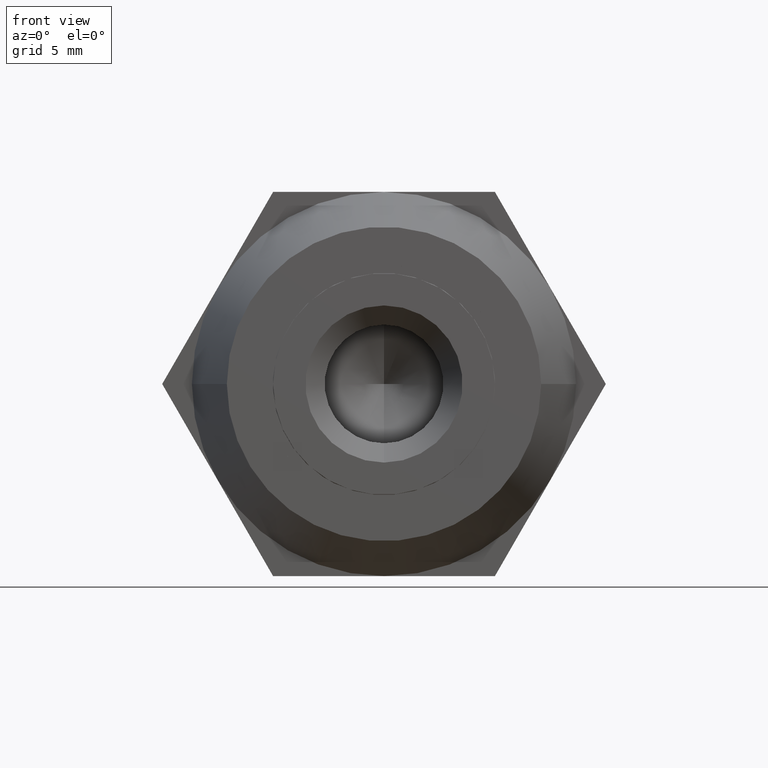
[diagram: clean part render]
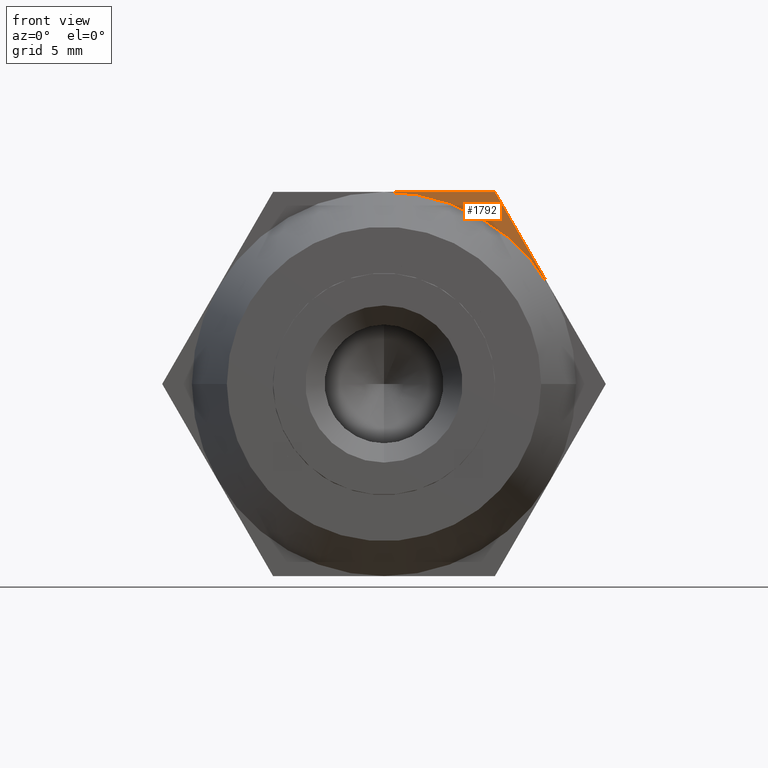
[diagram: same view with one face highlighted and labeled with its STEP entity id]
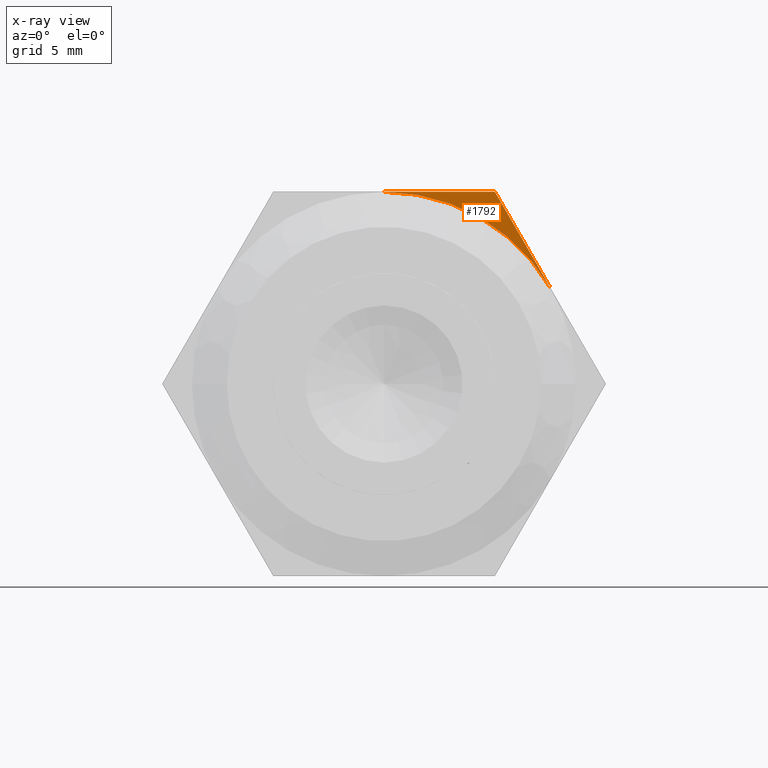
[diagram: x-ray of the same camera — body ghosted, the highlighted face saturated]
A machine part, front view. The second image highlights one B-rep face of the part: STEP entity #1792.
The next image is the same camera in x-ray: the body ghosted, the highlighted face saturated — about 0% of this face is hidden behind the body in this view.
In plain terms, the highlighted planar face has unit normal (0, 1, 0).
Its self-contained STEP definition (entity closure, byte-faithful):
#37 = DIRECTION ( 'NONE',  ( 0.0000000000000000000, 0.0000000000000000000, 1.000000000000000000 ) ) ;
#51 = AXIS2_PLACEMENT_3D ( 'NONE', #261, #2050, #2639 ) ;
#152 = DIRECTION ( 'NONE',  ( 1.000000000000000000, 0.0000000000000000000, 0.0000000000000000000 ) ) ;
#258 = VECTOR ( 'NONE', #152, 1000.000000000000000 ) ;
#261 = CARTESIAN_POINT ( 'NONE',  ( 0.0000000000000000000, -2.500000000000000000, 0.0000000000000000000 ) ) ;
#287 = LINE ( 'NONE', #866, #649 ) ;
#301 = VERTEX_POINT ( 'NONE', #675 ) ;
#442 = EDGE_CURVE ( 'NONE', #301, #3341, #1810, .T. ) ;
#454 = CARTESIAN_POINT ( 'NONE',  ( 6.350852961085890600, -2.500000000000000000, 11.00000000000000000 ) ) ;
#649 = VECTOR ( 'NONE', #1451, 1000.000000000000000 ) ;
#675 = CARTESIAN_POINT ( 'NONE',  ( 1.836970198721030000E-015, -2.500000000000000000, 11.00000000000000000 ) ) ;
#865 = PLANE ( 'NONE',  #51 ) ;
#866 = CARTESIAN_POINT ( 'NONE',  ( 6.350852961085890600, -2.500000000000000000, 11.00000000000000000 ) ) ;
#1336 = VERTEX_POINT ( 'NONE', #2450 ) ;
#1451 = DIRECTION ( 'NONE',  ( 0.4999999999999998900, 0.0000000000000000000, -0.8660254037844387100 ) ) ;
#1792 = ADVANCED_FACE ( 'NONE', ( #3289 ), #865, .F. ) ;
#1796 = DIRECTION ( 'NONE',  ( 0.0000000000000000000, 1.000000000000000000, 0.0000000000000000000 ) ) ;
#1810 = LINE ( 'NONE', #2502, #258 ) ;
#2050 = DIRECTION ( 'NONE',  ( 0.0000000000000000000, 1.000000000000000000, 0.0000000000000000000 ) ) ;
#2450 = CARTESIAN_POINT ( 'NONE',  ( 9.526279441628831900, -2.500000000000000000, 5.500000000000000000 ) ) ;
#2502 = CARTESIAN_POINT ( 'NONE',  ( -6.350852961085890600, -2.500000000000000000, 11.00000000000000000 ) ) ;
#2596 = AXIS2_PLACEMENT_3D ( 'NONE', #3296, #1796, #37 ) ;
#2626 = EDGE_LOOP ( 'NONE', ( #2988, #3757, #3361 ) ) ;
#2639 = DIRECTION ( 'NONE',  ( 0.0000000000000000000, 0.0000000000000000000, 1.000000000000000000 ) ) ;
#2988 = ORIENTED_EDGE ( 'NONE', *, *, #442, .F. ) ;
#3120 = EDGE_CURVE ( 'NONE', #301, #1336, #3152, .T. ) ;
#3152 = CIRCLE ( 'NONE', #2596, 11.00000000000000000 ) ;
#3289 = FACE_OUTER_BOUND ( 'NONE', #2626, .T. ) ;
#3296 = CARTESIAN_POINT ( 'NONE',  ( 1.836970198721030000E-015, -2.500000000000000000, 2.694222958124174500E-016 ) ) ;
#3341 = VERTEX_POINT ( 'NONE', #454 ) ;
#3361 = ORIENTED_EDGE ( 'NONE', *, *, #3662, .F. ) ;
#3662 = EDGE_CURVE ( 'NONE', #3341, #1336, #287, .T. ) ;
#3757 = ORIENTED_EDGE ( 'NONE', *, *, #3120, .T. ) ;